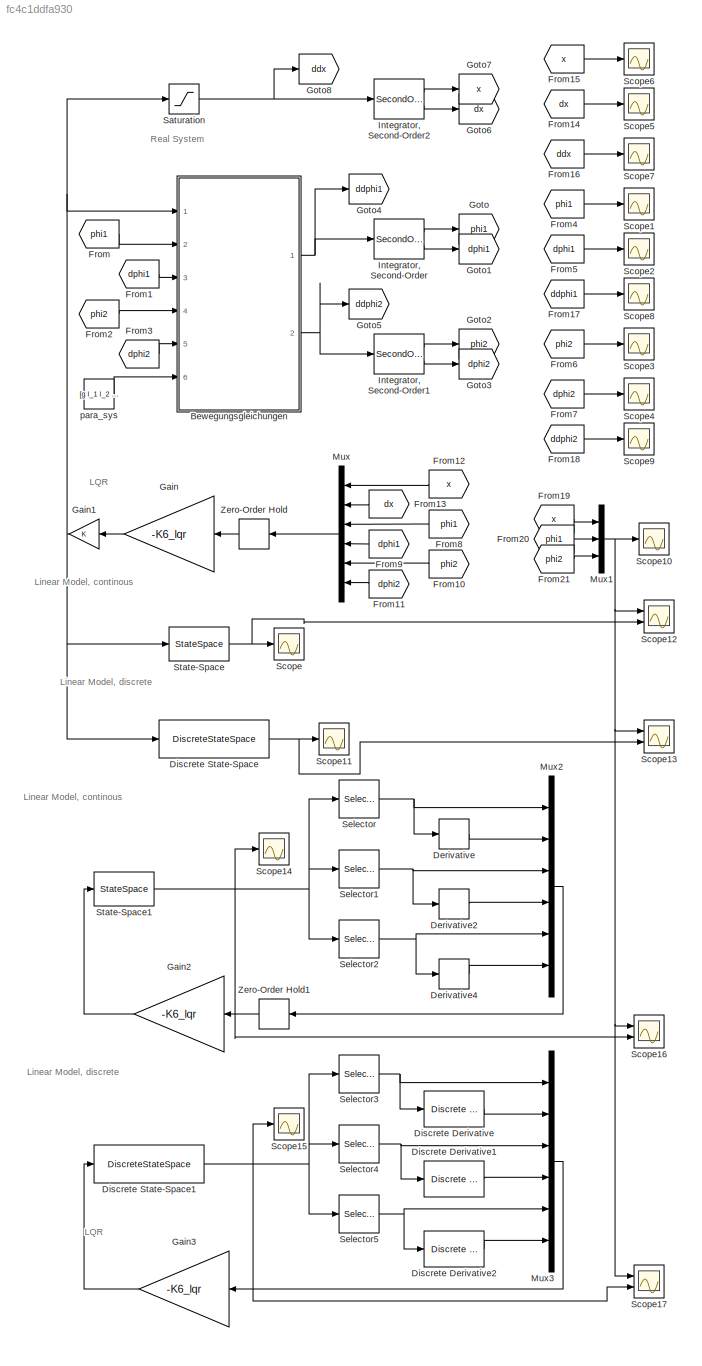
MODEL slx_fc4c1ddfa930
KIND model
CONFIG AbsTol = auto
CONFIG FixedStep = T_s
CONFIG InitFcn = dp_real_vs_lin_script
CONFIG MaxStep = auto
CONFIG MinStep = auto
CONFIG RelTol = 1e-3
CONFIG SampleTimeConstraint = Unconstrained
CONFIG Solver = VariableStepAuto
CONFIG SolverMode = Auto
CONFIG SolverName = VariableStepAuto
CONFIG StartTime = 0.0
CONFIG StopTime = 10
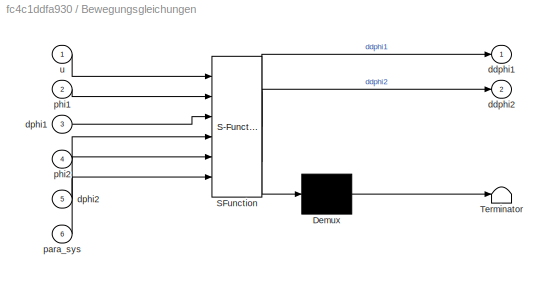
BLOCK [SubSystem] Bewegungsgleichungen
  ErrorFcn = Stateflow.Translate.translate
  PermitHierarchicalResolution = ExplicitOnly
  Ports = [6, 2]
  RequestExecContextInheritance = off
  SFBlockType = MATLAB Function
  TreatAsAtomicUnit = on
  Variant = off
BLOCK [Demux] Bewegungsgleichungen/ Demux 
  Outputs = 1
  Ports = [1, 1]
BLOCK [S-Function] Bewegungsgleichungen/ SFunction 
  EnableBusSupport = on
  FunctionName = sf_sfun
  PortCounts = [6 3]
  Ports = [6, 3]
  SFunctionDeploymentMode = off
  Tag = Stateflow S-Function dp_real_vs_lin 5
BLOCK [Terminator] Bewegungsgleichungen/ Terminator 
BLOCK [Outport] Bewegungsgleichungen/ddphi1
  IconDisplay = Port number
BLOCK [Outport] Bewegungsgleichungen/ddphi2
  IconDisplay = Port number
  Port = 2
BLOCK [Inport] Bewegungsgleichungen/dphi1
  IconDisplay = Port number
  Port = 3
BLOCK [Inport] Bewegungsgleichungen/dphi2
  IconDisplay = Port number
  Port = 5
BLOCK [Inport] Bewegungsgleichungen/para_sys
  IconDisplay = Port number
  Port = 6
BLOCK [Inport] Bewegungsgleichungen/phi1
  IconDisplay = Port number
  Port = 2
BLOCK [Inport] Bewegungsgleichungen/phi2
  IconDisplay = Port number
  Port = 4
BLOCK [Inport] Bewegungsgleichungen/u
  IconDisplay = Port number
BLOCK [Derivative] Derivative
BLOCK [Derivative] Derivative2
BLOCK [Derivative] Derivative4
BLOCK [Reference] Discrete Derivative  REF=simulink/Discrete/Discrete Derivative
  Ports = [1, 1]
  SourceBlock = simulink/Discrete/Discrete Derivative
  SourceType = Discrete Derivative
BLOCK [Reference] Discrete Derivative1  REF=simulink/Discrete/Discrete Derivative
  Ports = [1, 1]
  SourceBlock = simulink/Discrete/Discrete Derivative
  SourceType = Discrete Derivative
BLOCK [Reference] Discrete Derivative2  REF=simulink/Discrete/Discrete Derivative
  Ports = [1, 1]
  SourceBlock = simulink/Discrete/Discrete Derivative
  SourceType = Discrete Derivative
BLOCK [DiscreteStateSpace] Discrete State-Space
  A = Ad6
  B = Bd6
  C = Cd6
  D = D6
  SampleTime = T_s
  X0 = x0_6
BLOCK [DiscreteStateSpace] Discrete State-Space1
  A = Ad6
  B = Bd6
  C = Cd6
  D = D6
  SampleTime = T_s
  X0 = x0_6
BLOCK [From] From
  GotoTag = phi1
BLOCK [From] From1
  GotoTag = dphi1
BLOCK [From] From10
  GotoTag = phi2
BLOCK [From] From11
  GotoTag = dphi2
BLOCK [From] From12
  GotoTag = x
BLOCK [From] From13
  GotoTag = dx
BLOCK [From] From14
  GotoTag = dx
BLOCK [From] From15
  GotoTag = x
BLOCK [From] From16
  GotoTag = ddx
BLOCK [From] From17
  GotoTag = ddphi1
BLOCK [From] From18
  GotoTag = ddphi2
BLOCK [From] From19
  GotoTag = x
BLOCK [From] From2
  GotoTag = phi2
BLOCK [From] From20
  GotoTag = phi1
BLOCK [From] From21
  GotoTag = phi2
BLOCK [From] From3
  GotoTag = dphi2
BLOCK [From] From4
  GotoTag = phi1
BLOCK [From] From5
  GotoTag = dphi1
BLOCK [From] From6
  GotoTag = phi2
BLOCK [From] From7
  GotoTag = dphi2
BLOCK [From] From8
  GotoTag = phi1
BLOCK [From] From9
  GotoTag = dphi1
BLOCK [Gain] Gain
  Gain = -K6_lqr
  Multiplication = Matrix(K*u) (u vector)
  OutDataTypeStr = Inherit: Inherit via internal rule
  ParamDataTypeStr = Inherit: Inherit via internal rule
  SaturateOnIntegerOverflow = off
BLOCK [Gain] Gain1
  OutDataTypeStr = Inherit: Inherit via internal rule
  ParamDataTypeStr = Inherit: Inherit via internal rule
  SaturateOnIntegerOverflow = off
BLOCK [Gain] Gain2
  Gain = -K6_lqr
  Multiplication = Matrix(K*u) (u vector)
  OutDataTypeStr = Inherit: Inherit via internal rule
  ParamDataTypeStr = Inherit: Inherit via internal rule
  SaturateOnIntegerOverflow = off
BLOCK [Gain] Gain3
  Gain = -K6_lqr
  Multiplication = Matrix(K*u) (u vector)
  OutDataTypeStr = Inherit: Inherit via internal rule
  ParamDataTypeStr = Inherit: Inherit via internal rule
  SaturateOnIntegerOverflow = off
BLOCK [Goto] Goto
  GotoTag = phi1
BLOCK [Goto] Goto1
  GotoTag = dphi1
BLOCK [Goto] Goto2
  GotoTag = phi2
BLOCK [Goto] Goto3
  GotoTag = dphi2
BLOCK [Goto] Goto4
  GotoTag = ddphi1
BLOCK [Goto] Goto5
  GotoTag = ddphi2
BLOCK [Goto] Goto6
  GotoTag = dx
BLOCK [Goto] Goto7
  GotoTag = x
BLOCK [Goto] Goto8
  GotoTag = ddx
BLOCK [SecondOrderIntegrator] Integrator, Second-Order
  ICDXDT = dphi1_0
  ICX = phi1_0
  Ports = [1, 2]
BLOCK [SecondOrderIntegrator] Integrator, Second-Order1
  ICDXDT = dphi2_0
  ICX = phi2_0
  Ports = [1, 2]
BLOCK [SecondOrderIntegrator] Integrator, Second-Order2
  ICDXDT = dx_0
  ICX = x_0
  LimitDXDT = on
  LimitX = on
  LowerLimitDXDT = -5
  LowerLimitX = -0.2
  Ports = [1, 2]
  UpperLimitDXDT = 5
  UpperLimitX = 0.2
BLOCK [Mux] Mux
  DisplayOption = bar
  Inputs = 6
  Ports = [6, 1]
BLOCK [Mux] Mux1
  DisplayOption = bar
  Inputs = 3
  Ports = [3, 1]
BLOCK [Mux] Mux2
  DisplayOption = bar
  Inputs = 6
  Ports = [6, 1]
BLOCK [Mux] Mux3
  DisplayOption = bar
  Inputs = 6
  Ports = [6, 1]
BLOCK [Saturate] Saturation
  InputPortMap = u0
  LowerLimit = -20
  Ports = [1, 1]
  UpperLimit = 20
BLOCK [Scope] Scope
  Ports = [1]
  ScopeSpecificationString = Simulink.scopes.TimeScopeBlockCfg('CurrentConfiguration', extmgr.ConfigurationSet(extmgr.Configuration('Core','General UI',true),extmgr.Configuration('Core','Source UI',true),extmgr.Configuration('Sources','WiredSimulink',true,'DataLoggingVariableName','ScopeData10'),extmgr.Configuration('Visuals','Time Domain',true,'SerializedDisplays',{struct('MinYLimReal','-11708086946329938.00000','MaxYLimReal...<+1596ch>
BLOCK [Scope] Scope1
  Ports = [1]
  ScopeSpecificationString = Simulink.scopes.TimeScopeBlockCfg('CurrentConfiguration', extmgr.ConfigurationSet(extmgr.Configuration('Core','General UI',true),extmgr.Configuration('Core','Source UI',true),extmgr.Configuration('Sources','WiredSimulink',true,'DataLoggingVariableName','ScopeData1'),extmgr.Configuration('Visuals','Time Domain',true,'SerializedDisplays',{struct('MinYLimReal','-0.15987','MaxYLimReal','0.13702','YLab...<+1427ch>
BLOCK [Scope] Scope10
  Ports = [1]
  ScopeSpecificationString = Simulink.scopes.TimeScopeBlockCfg('CurrentConfiguration', extmgr.ConfigurationSet(extmgr.Configuration('Core','General UI',true),extmgr.Configuration('Core','Source UI',true),extmgr.Configuration('Sources','WiredSimulink',true,'DataLoggingVariableName','ScopeData9'),extmgr.Configuration('Visuals','Time Domain',true,'SerializedDisplays',{struct('MinYLimReal','-0.3892','MaxYLimReal','0.37101','YLabe...<+1513ch>
BLOCK [Scope] Scope11
  Ports = [1]
  ScopeSpecificationString = Simulink.scopes.TimeScopeBlockCfg('CurrentConfiguration', extmgr.ConfigurationSet(extmgr.Configuration('Core','General UI',true),extmgr.Configuration('Core','Source UI',true),extmgr.Configuration('Sources','WiredSimulink',true,'DataLoggingVariableName','ScopeData11'),extmgr.Configuration('Visuals','Time Domain',true,'SerializedDisplays',{struct('MinYLimReal','-11708086948221486.00000','MaxYLimReal...<+1627ch>
BLOCK [Scope] Scope12
  NumInputPorts = 2
  Ports = [2]
  ScopeSpecificationString = Simulink.scopes.TimeScopeBlockCfg('CurrentConfiguration', extmgr.ConfigurationSet(extmgr.Configuration('Core','General UI',true),extmgr.Configuration('Core','Source UI',true),extmgr.Configuration('Sources','WiredSimulink',true,'DataLoggingVariableName','ScopeData1'),extmgr.Configuration('Visuals','Time Domain',true,'SerializedDisplays',{struct('MinYLimReal','-11851858836279751000000000000000000000...<+1983ch>
BLOCK [Scope] Scope13
  NumInputPorts = 2
  Ports = [2]
  ScopeSpecificationString = Simulink.scopes.TimeScopeBlockCfg('CurrentConfiguration', extmgr.ConfigurationSet(extmgr.Configuration('Core','General UI',true),extmgr.Configuration('Core','Source UI',true),extmgr.Configuration('Sources','WiredSimulink',true,'DataLoggingVariableName','ScopeData2'),extmgr.Configuration('Visuals','Time Domain',true,'SerializedDisplays',{struct('MinYLimReal','-0.34583','MaxYLimReal','0.31943','YLab...<+1694ch>
BLOCK [Scope] Scope14
  Ports = [1]
  ScopeSpecificationString = Simulink.scopes.TimeScopeBlockCfg('CurrentConfiguration', extmgr.ConfigurationSet(extmgr.Configuration('Core','General UI',true),extmgr.Configuration('Core','Source UI',true),extmgr.Configuration('Sources','WiredSimulink',true,'DataLoggingVariableName','ScopeData3'),extmgr.Configuration('Visuals','Time Domain',true,'SerializedDisplays',{struct('MinYLimReal','-0.30603','MaxYLimReal','0.19592','YLab...<+1503ch>
BLOCK [Scope] Scope15
  Ports = [1]
  ScopeSpecificationString = Simulink.scopes.TimeScopeBlockCfg('CurrentConfiguration', extmgr.ConfigurationSet(extmgr.Configuration('Core','General UI',true),extmgr.Configuration('Core','Source UI',true),extmgr.Configuration('Sources','WiredSimulink',true,'DataLoggingVariableName','ScopeData4'),extmgr.Configuration('Visuals','Time Domain',true,'SerializedDisplays',{struct('MinYLimReal','-0.23616','MaxYLimReal','0.13839','YLab...<+1530ch>
BLOCK [Scope] Scope16
  NumInputPorts = 2
  Ports = [2]
  ScopeSpecificationString = Simulink.scopes.TimeScopeBlockCfg('CurrentConfiguration', extmgr.ConfigurationSet(extmgr.Configuration('Core','General UI',true),extmgr.Configuration('Core','Source UI',true),extmgr.Configuration('Sources','WiredSimulink',true,'DataLoggingVariableName','ScopeData5'),extmgr.Configuration('Visuals','Time Domain',true,'SerializedDisplays',{struct('MinYLimReal','-0.19702','MaxYLimReal','0.14995','YLab...<+1670ch>
BLOCK [Scope] Scope17
  NumInputPorts = 2
  Ports = [2]
  ScopeSpecificationString = Simulink.scopes.TimeScopeBlockCfg('CurrentConfiguration', extmgr.ConfigurationSet(extmgr.Configuration('Core','General UI',true),extmgr.Configuration('Core','Source UI',true),extmgr.Configuration('Sources','WiredSimulink',true,'DataLoggingVariableName','ScopeData6'),extmgr.Configuration('Visuals','Time Domain',true,'SerializedDisplays',{struct('MinYLimReal','-0.19702','MaxYLimReal','0.14995','YLab...<+1697ch>
BLOCK [Scope] Scope2
  Ports = [1]
  ScopeSpecificationString = Simulink.scopes.TimeScopeBlockCfg('CurrentConfiguration', extmgr.ConfigurationSet(extmgr.Configuration('Core','General UI',true),extmgr.Configuration('Core','Source UI',true),extmgr.Configuration('Sources','WiredSimulink',true),extmgr.Configuration('Visuals','Time Domain',true,'SerializedDisplays',{struct('MinYLimReal','-2.12219','MaxYLimReal','0.99469','YLabelReal','','MinYLimMag','0.00000','MaxY...<+1344ch>
BLOCK [Scope] Scope3
  Ports = [1]
  ScopeSpecificationString = Simulink.scopes.TimeScopeBlockCfg('CurrentConfiguration', extmgr.ConfigurationSet(extmgr.Configuration('Core','General UI',true),extmgr.Configuration('Core','Source UI',true),extmgr.Configuration('Sources','WiredSimulink',true,'DataLoggingVariableName','ScopeData2'),extmgr.Configuration('Visuals','Time Domain',true,'SerializedDisplays',{struct('MinYLimReal','-0.05116','MaxYLimReal','0.03068','YLab...<+1438ch>
BLOCK [Scope] Scope4
  Ports = [1]
  ScopeSpecificationString = Simulink.scopes.TimeScopeBlockCfg('CurrentConfiguration', extmgr.ConfigurationSet(extmgr.Configuration('Core','General UI',true),extmgr.Configuration('Core','Source UI',true),extmgr.Configuration('Sources','WiredSimulink',true,'DataLoggingVariableName','ScopeData3'),extmgr.Configuration('Visuals','Time Domain',true,'SerializedDisplays',{struct('MinYLimReal','-0.53661','MaxYLimReal','0.41155','YLab...<+1409ch>
BLOCK [Scope] Scope5
  Ports = [1]
  ScopeSpecificationString = Simulink.scopes.TimeScopeBlockCfg('CurrentConfiguration', extmgr.ConfigurationSet(extmgr.Configuration('Core','General UI',true),extmgr.Configuration('Core','Source UI',true),extmgr.Configuration('Sources','WiredSimulink',true,'DataLoggingVariableName','ScopeData4'),extmgr.Configuration('Visuals','Time Domain',true,'SerializedDisplays',{struct('MinYLimReal','-0.42798','MaxYLimReal','0.30635','YLab...<+1409ch>
BLOCK [Scope] Scope6
  Ports = [1]
  ScopeSpecificationString = Simulink.scopes.TimeScopeBlockCfg('CurrentConfiguration', extmgr.ConfigurationSet(extmgr.Configuration('Core','General UI',true),extmgr.Configuration('Core','Source UI',true),extmgr.Configuration('Sources','WiredSimulink',true,'DataLoggingVariableName','ScopeData5'),extmgr.Configuration('Visuals','Time Domain',true,'SerializedDisplays',{struct('MinYLimReal','-0.05679','MaxYLimReal','0.13437','YLab...<+1409ch>
BLOCK [Scope] Scope7
  Ports = [1]
  ScopeSpecificationString = Simulink.scopes.TimeScopeBlockCfg('CurrentConfiguration', extmgr.ConfigurationSet(extmgr.Configuration('Core','General UI',true),extmgr.Configuration('Core','Source UI',true),extmgr.Configuration('Sources','WiredSimulink',true,'DataLoggingVariableName','ScopeData6'),extmgr.Configuration('Visuals','Time Domain',true,'SerializedDisplays',{struct('MinYLimReal','-22.71251','MaxYLimReal','8.26843','YLa...<+1415ch>
BLOCK [Scope] Scope8
  Ports = [1]
  ScopeSpecificationString = Simulink.scopes.TimeScopeBlockCfg('CurrentConfiguration', extmgr.ConfigurationSet(extmgr.Configuration('Core','General UI',true),extmgr.Configuration('Core','Source UI',true),extmgr.Configuration('Sources','WiredSimulink',true,'DataLoggingVariableName','ScopeData7'),extmgr.Configuration('Visuals','Time Domain',true,'SerializedDisplays',{struct('MinYLimReal','-1.30011','MaxYLimReal','0.46672','YLab...<+1383ch>
BLOCK [Scope] Scope9
  Ports = [1]
  ScopeSpecificationString = Simulink.scopes.TimeScopeBlockCfg('CurrentConfiguration', extmgr.ConfigurationSet(extmgr.Configuration('Core','General UI',true),extmgr.Configuration('Core','Source UI',true),extmgr.Configuration('Sources','WiredSimulink',true,'DataLoggingVariableName','ScopeData8'),extmgr.Configuration('Visuals','Time Domain',true,'SerializedDisplays',{struct('MinYLimReal','-11.90777','MaxYLimReal','11.95938','YL...<+1371ch>
BLOCK [Selector] Selector
  IndexOptions = Index vector (dialog)
  Indices = [1]
  InputPortWidth = 3
  OutputSizes = 1
  Ports = [1, 1]
BLOCK [Selector] Selector1
  IndexOptions = Index vector (dialog)
  Indices = [2]
  InputPortWidth = 3
  OutputSizes = 1
  Ports = [1, 1]
BLOCK [Selector] Selector2
  IndexOptions = Index vector (dialog)
  Indices = [3]
  InputPortWidth = 3
  OutputSizes = 1
  Ports = [1, 1]
BLOCK [Selector] Selector3
  IndexOptions = Index vector (dialog)
  Indices = [1]
  InputPortWidth = 3
  OutputSizes = 1
  Ports = [1, 1]
BLOCK [Selector] Selector4
  IndexOptions = Index vector (dialog)
  Indices = [2]
  InputPortWidth = 3
  OutputSizes = 1
  Ports = [1, 1]
BLOCK [Selector] Selector5
  IndexOptions = Index vector (dialog)
  Indices = [3]
  InputPortWidth = 3
  OutputSizes = 1
  Ports = [1, 1]
BLOCK [StateSpace] State-Space
  A = A6
  B = B6
  C = C6
  D = D6
  Ports = [1, 1]
  X0 = x0_6
BLOCK [StateSpace] State-Space1
  A = A6
  B = B6
  C = C6
  D = D6
  Ports = [1, 1]
  X0 = x0_6
BLOCK [ZeroOrderHold] Zero-Order Hold
  SampleTime = T_s
BLOCK [ZeroOrderHold] Zero-Order Hold1
  SampleTime = T_s
BLOCK [Constant] para_sys
  Value = [g l_1 l_2 m_1 m_2 m_3 d_p1 d_p2]
ANNOTATION (root): LQR
ANNOTATION (root): Real System
ANNOTATION (root): Linear Model, continous
ANNOTATION (root): Linear Model, discrete
NET Bewegungsgleichungen:1 -> Goto4:1, Integrator, Second-Order:1
NET Bewegungsgleichungen:2 -> Goto5:1, Integrator, Second-Order1:1
LINE Derivative2:1 -> Mux2:4
LINE Derivative4:1 -> Mux2:6
LINE Derivative:1 -> Mux2:2
LINE Discrete Derivative1:1 -> Mux3:4
LINE Discrete Derivative2:1 -> Mux3:6
LINE Discrete Derivative:1 -> Mux3:2
NET Discrete State-Space1:1 -> Scope15:1, Scope17:2, Selector3:1, Selector4:1, Selector5:1
NET Discrete State-Space:1 -> Scope11:1, Scope13:2
LINE From10:1 -> Mux:5
LINE From11:1 -> Mux:6
LINE From12:1 -> Mux:1
LINE From13:1 -> Mux:2
LINE From14:1 -> Scope5:1
LINE From15:1 -> Scope6:1
LINE From16:1 -> Scope7:1
LINE From17:1 -> Scope8:1
LINE From18:1 -> Scope9:1
LINE From19:1 -> Mux1:1
LINE From1:1 -> Bewegungsgleichungen:3
LINE From20:1 -> Mux1:2
LINE From21:1 -> Mux1:3
LINE From2:1 -> Bewegungsgleichungen:4
LINE From3:1 -> Bewegungsgleichungen:5
LINE From4:1 -> Scope1:1
LINE From5:1 -> Scope2:1
LINE From6:1 -> Scope3:1
LINE From7:1 -> Scope4:1
LINE From8:1 -> Mux:3
LINE From9:1 -> Mux:4
LINE From:1 -> Bewegungsgleichungen:2
NET Gain1:1 -> Bewegungsgleichungen:1, Discrete State-Space:1, Saturation:1, State-Space:1
LINE Gain2:1 -> State-Space1:1
LINE Gain3:1 -> Discrete State-Space1:1
LINE Gain:1 -> Gain1:1
LINE Integrator, Second-Order1:1 -> Goto2:1
LINE Integrator, Second-Order1:2 -> Goto3:1
LINE Integrator, Second-Order2:1 -> Goto7:1
LINE Integrator, Second-Order2:2 -> Goto6:1
LINE Integrator, Second-Order:1 -> Goto:1
LINE Integrator, Second-Order:2 -> Goto1:1
NET Mux1:1 -> Scope10:1, Scope12:1, Scope13:1, Scope16:1, Scope17:1
LINE Mux2:1 -> Zero-Order Hold1:1
LINE Mux3:1 -> Gain3:1
LINE Mux:1 -> Zero-Order Hold:1
NET Saturation:1 -> Goto8:1, Integrator, Second-Order2:1
NET Selector1:1 -> Derivative2:1, Mux2:3
NET Selector2:1 -> Derivative4:1, Mux2:5
NET Selector3:1 -> Discrete Derivative:1, Mux3:1
NET Selector4:1 -> Discrete Derivative1:1, Mux3:3
NET Selector5:1 -> Discrete Derivative2:1, Mux3:5
NET Selector:1 -> Derivative:1, Mux2:1
NET State-Space1:1 -> Scope14:1, Scope16:2, Selector1:1, Selector2:1, Selector:1
NET State-Space:1 -> Scope12:2, Scope:1
LINE Zero-Order Hold1:1 -> Gain2:1
LINE Zero-Order Hold:1 -> Gain:1
LINE para_sys:1 -> Bewegungsgleichungen:6
note: NET lines group one-source signal fan-out (src -> all destinations, sorted); 1:1 wires keep LINE
CHART Bewegungsgleichungen states=1 transitions=1
  STATE_LABEL 'eML_blk_kernel()'
  STATE_LABEL 'SCRIPT:\nfunction [ddphi1, ddphi2] = pendel_1_2(u, phi1, dphi1, phi2, dphi2, para_sys)\n%#codegen\n\ng = para_sys(1);\nl_1 = para_sys(2);\nl_2 = para_sys(3);\nm_1 = para_sys(4);\nm_2 = para_sys(5);\nm_3 = para_sys(6);\nd_p1 = para_sys(7);\nd_p2 = para_sys(8);\n\nddphi1 = 1/(l_1^2*(9*cos(phi1-phi2)^2*m_2-4*m_1-12*m_2-12*m_3)*l_2)*(9*dphi1^2*cos(phi1-phi2)*sin(phi1-phi2)*l_1^2*l_2*m_2+6*m_2*l_1*l_2^2*sin(phi1-ph...<+1339ch>'
